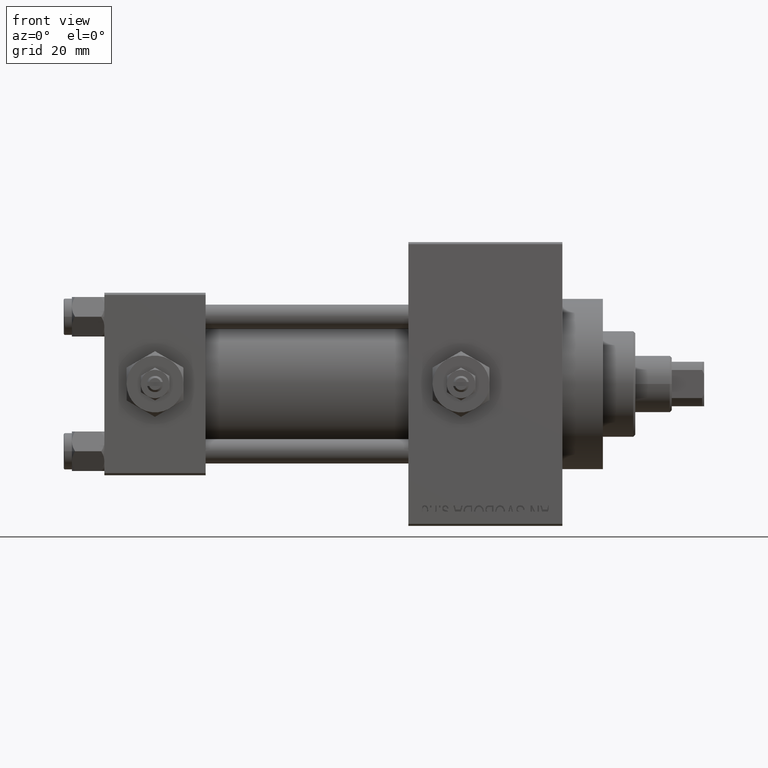
[diagram: clean part render]
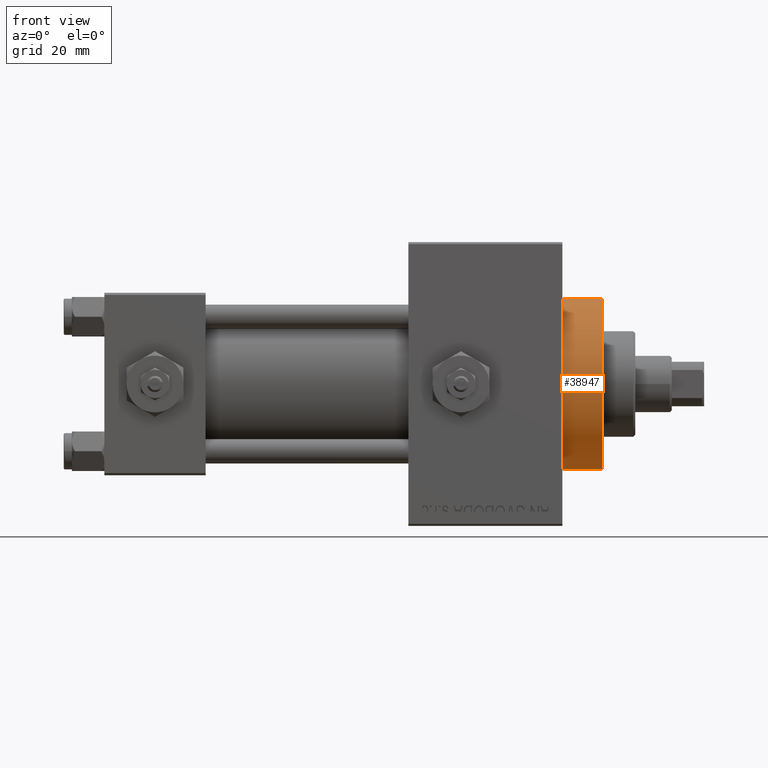
[diagram: same view with one face highlighted and labeled with its STEP entity id]
A machine part, front view. The second image highlights one B-rep face of the part: STEP entity #38947.
In plain terms, the highlighted cylindrical surface (partial cylindrical patch) has radius 21 mm, axis along (-1, -0, -0).
Its self-contained STEP definition (entity closure, byte-faithful):
#2225 = EDGE_CURVE ( 'NONE', #25844, #16267, #28249, .T. ) ;
#3981 = ORIENTED_EDGE ( 'NONE', *, *, #2225, .F. ) ;
#5856 = EDGE_CURVE ( 'NONE', #16267, #34519, #43646, .T. ) ;
#5950 = ORIENTED_EDGE ( 'NONE', *, *, #46915, .T. ) ;
#6920 = VERTEX_POINT ( 'NONE', #19291 ) ;
#8832 = DIRECTION ( 'NONE',  ( -1.000000000000000000, -0.000000000000000000, -0.000000000000000000 ) ) ;
#9366 = ORIENTED_EDGE ( 'NONE', *, *, #5856, .F. ) ;
#9639 = CARTESIAN_POINT ( 'NONE',  ( 123.0000000000000142, 2.571758278209441661E-15, -21.00000000000000000 ) ) ;
#12068 = CYLINDRICAL_SURFACE ( 'NONE', #32255, 21.00000000000000000 ) ;
#13349 = VECTOR ( 'NONE', #31976, 1000.000000000000000 ) ;
#16267 = VERTEX_POINT ( 'NONE', #39210 ) ;
#19291 = CARTESIAN_POINT ( 'NONE',  ( 113.0000000000000142, 0.000000000000000000, 21.00000000000000000 ) ) ;
#20031 = EDGE_LOOP ( 'NONE', ( #9366, #3981, #23261, #5950 ) ) ;
#20184 = EDGE_CURVE ( 'NONE', #25844, #6920, #44841, .T. ) ;
#20494 = CARTESIAN_POINT ( 'NONE',  ( 113.0000000000000142, 2.571758278209441661E-15, -21.00000000000000000 ) ) ;
#22965 = DIRECTION ( 'NONE',  ( -1.000000000000000000, -0.000000000000000000, -0.000000000000000000 ) ) ;
#23261 = ORIENTED_EDGE ( 'NONE', *, *, #20184, .T. ) ;
#24011 = VECTOR ( 'NONE', #22965, 1000.000000000000000 ) ;
#24802 = DIRECTION ( 'NONE',  ( 1.000000000000000000, 0.000000000000000000, 0.000000000000000000 ) ) ;
#25844 = VERTEX_POINT ( 'NONE', #43909 ) ;
#28249 = CIRCLE ( 'NONE', #40940, 21.00000000000000000 ) ;
#28421 = CARTESIAN_POINT ( 'NONE',  ( 123.0000000000000142, 0.000000000000000000, 0.000000000000000000 ) ) ;
#28665 = DIRECTION ( 'NONE',  ( 0.000000000000000000, 0.000000000000000000, 1.000000000000000000 ) ) ;
#31976 = DIRECTION ( 'NONE',  ( -1.000000000000000000, -0.000000000000000000, -0.000000000000000000 ) ) ;
#32255 = AXIS2_PLACEMENT_3D ( 'NONE', #28421, #8832, #28665 ) ;
#32394 = CIRCLE ( 'NONE', #37949, 21.00000000000000000 ) ;
#34519 = VERTEX_POINT ( 'NONE', #20494 ) ;
#35083 = DIRECTION ( 'NONE',  ( 0.000000000000000000, 0.000000000000000000, -1.000000000000000000 ) ) ;
#35572 = CARTESIAN_POINT ( 'NONE',  ( 113.0000000000000142, 0.000000000000000000, 0.000000000000000000 ) ) ;
#35750 = CARTESIAN_POINT ( 'NONE',  ( 123.0000000000000142, 0.000000000000000000, 0.000000000000000000 ) ) ;
#37949 = AXIS2_PLACEMENT_3D ( 'NONE', #35572, #46995, #35083 ) ;
#38947 = ADVANCED_FACE ( 'NONE', ( #46078 ), #12068, .T. ) ;
#39210 = CARTESIAN_POINT ( 'NONE',  ( 123.0000000000000142, 2.571758278209441661E-15, -21.00000000000000000 ) ) ;
#40940 = AXIS2_PLACEMENT_3D ( 'NONE', #35750, #24802, #46429 ) ;
#43646 = LINE ( 'NONE', #9639, #13349 ) ;
#43909 = CARTESIAN_POINT ( 'NONE',  ( 123.0000000000000142, 0.000000000000000000, 21.00000000000000000 ) ) ;
#44841 = LINE ( 'NONE', #48804, #24011 ) ;
#46078 = FACE_OUTER_BOUND ( 'NONE', #20031, .T. ) ;
#46429 = DIRECTION ( 'NONE',  ( 0.000000000000000000, 0.000000000000000000, -1.000000000000000000 ) ) ;
#46915 = EDGE_CURVE ( 'NONE', #6920, #34519, #32394, .T. ) ;
#46995 = DIRECTION ( 'NONE',  ( 1.000000000000000000, 0.000000000000000000, 0.000000000000000000 ) ) ;
#48804 = CARTESIAN_POINT ( 'NONE',  ( 123.0000000000000142, 0.000000000000000000, 21.00000000000000000 ) ) ;